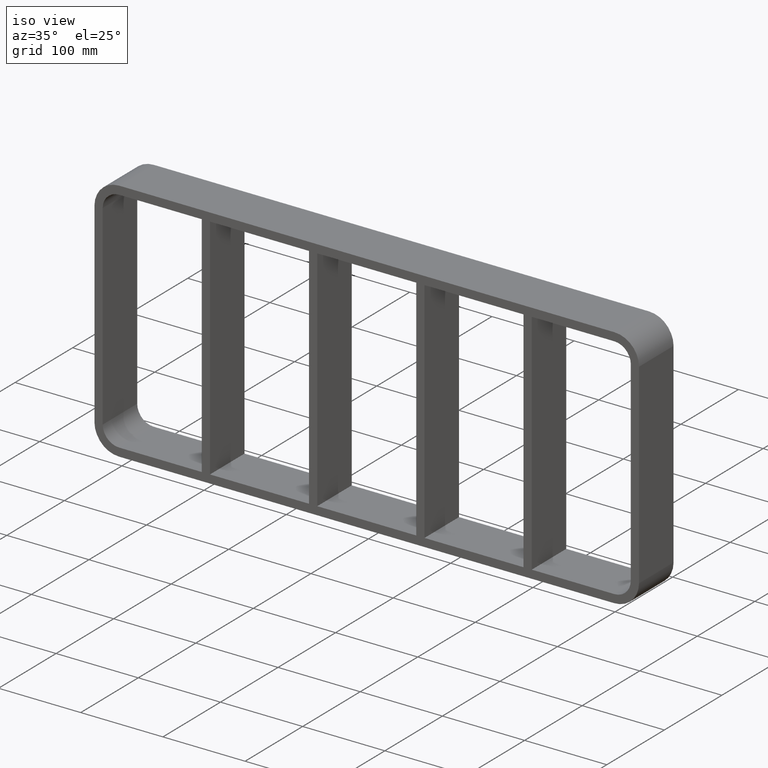
[diagram: clean part render]
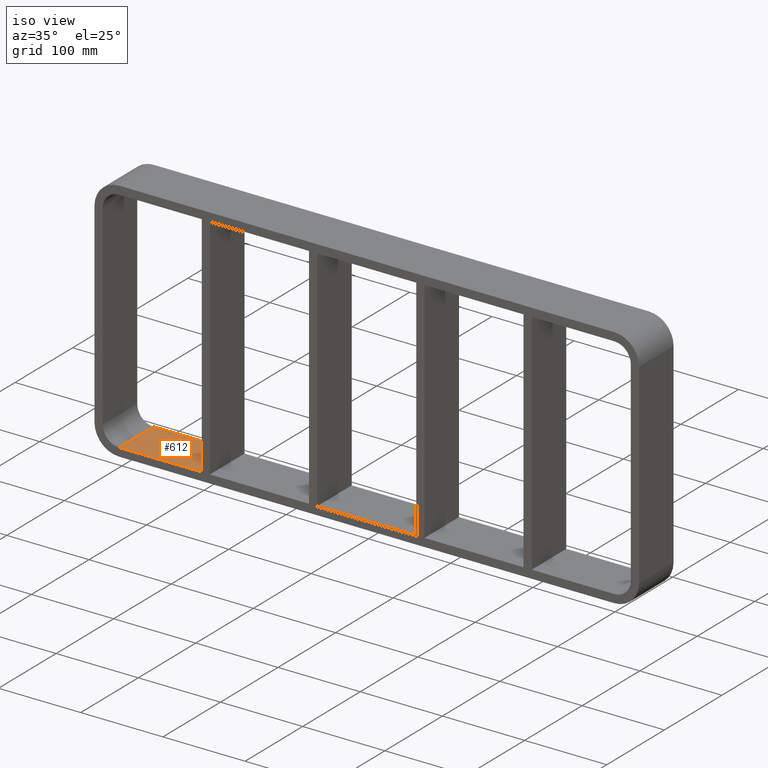
[diagram: same view with one face highlighted and labeled with its STEP entity id]
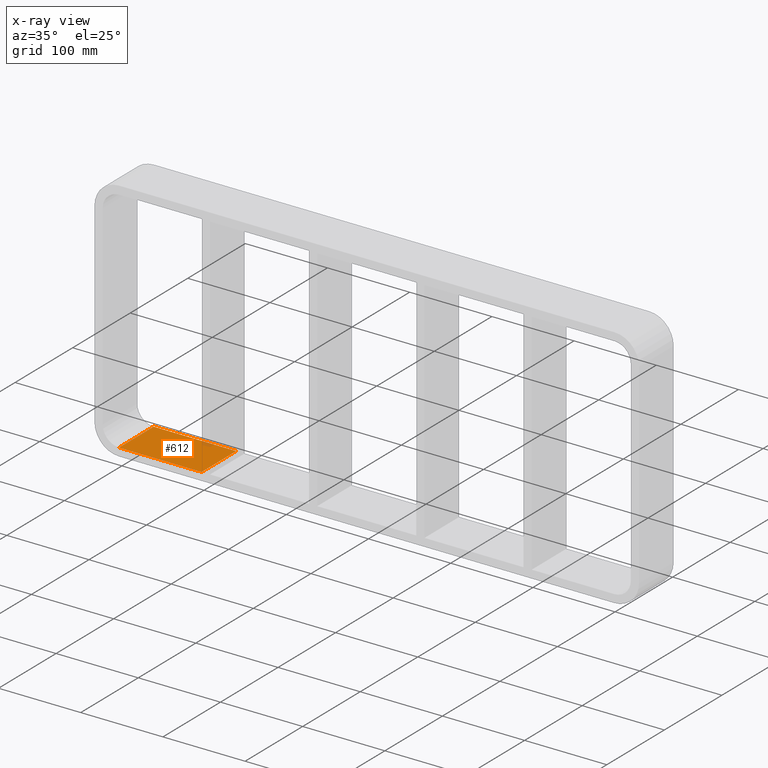
[diagram: x-ray of the same camera — body ghosted, the highlighted face saturated]
A machine part, iso view. The second image highlights one B-rep face of the part: STEP entity #612.
The next image is the same camera in x-ray: the body ghosted, the highlighted face saturated — about 2% of this face is hidden behind the body in this view.
In plain terms, the highlighted planar face has unit normal (0, 0, -1).
Its self-contained STEP definition (entity closure, byte-faithful):
#525=CARTESIAN_POINT('',(-200.75000000000136,-3.0,-139.00000000000006));
#526=VERTEX_POINT('',#525);
#543=CARTESIAN_POINT('',(-200.75000000000136,57.0,-139.00000000000006));
#544=VERTEX_POINT('',#543);
#551=CARTESIAN_POINT('',(-200.75000000000136,-3.0,-139.00000000000006));
#552=DIRECTION('',(0.0,1.0,0.0));
#553=VECTOR('',#552,60.000000000000007);
#554=LINE('',#551,#553);
#555=EDGE_CURVE('',#526,#544,#554,.T.);
#582=CARTESIAN_POINT('',(321.24999999999994,0.0,-139.00000000000006));
#583=DIRECTION('',(0.0,0.0,-1.0));
#584=DIRECTION('',(-1.0,0.0,0.0));
#585=AXIS2_PLACEMENT_3D('',#582,#583,#584);
#586=PLANE('',#585);
#587=ORIENTED_EDGE('',*,*,#555,.T.);
#588=CARTESIAN_POINT('',(-301.25000000000006,57.0,-139.00000000000006));
#589=VERTEX_POINT('',#588);
#590=CARTESIAN_POINT('',(-301.25,57.0,-139.00000000000006));
#591=DIRECTION('',(1.0,0.0,0.0));
#592=VECTOR('',#591,100.49999999999866);
#593=LINE('',#590,#592);
#594=EDGE_CURVE('',#589,#544,#593,.T.);
#595=ORIENTED_EDGE('',*,*,#594,.F.);
#596=CARTESIAN_POINT('',(-301.25000000000006,-3.0,-139.00000000000006));
#597=VERTEX_POINT('',#596);
#598=CARTESIAN_POINT('',(-301.25,-3.0,-139.00000000000006));
#599=DIRECTION('',(0.0,1.0,0.0));
#600=VECTOR('',#599,60.0);
#601=LINE('',#598,#600);
#602=EDGE_CURVE('',#597,#589,#601,.T.);
#603=ORIENTED_EDGE('',*,*,#602,.F.);
#604=CARTESIAN_POINT('',(-200.75000000000134,-3.0,-139.00000000000006));
#605=DIRECTION('',(-1.0,0.0,0.0));
#606=VECTOR('',#605,100.49999999999866);
#607=LINE('',#604,#606);
#608=EDGE_CURVE('',#526,#597,#607,.T.);
#609=ORIENTED_EDGE('',*,*,#608,.F.);
#610=EDGE_LOOP('',(#587,#595,#603,#609));
#611=FACE_OUTER_BOUND('',#610,.T.);
#612=ADVANCED_FACE('',(#611),#586,.F.);